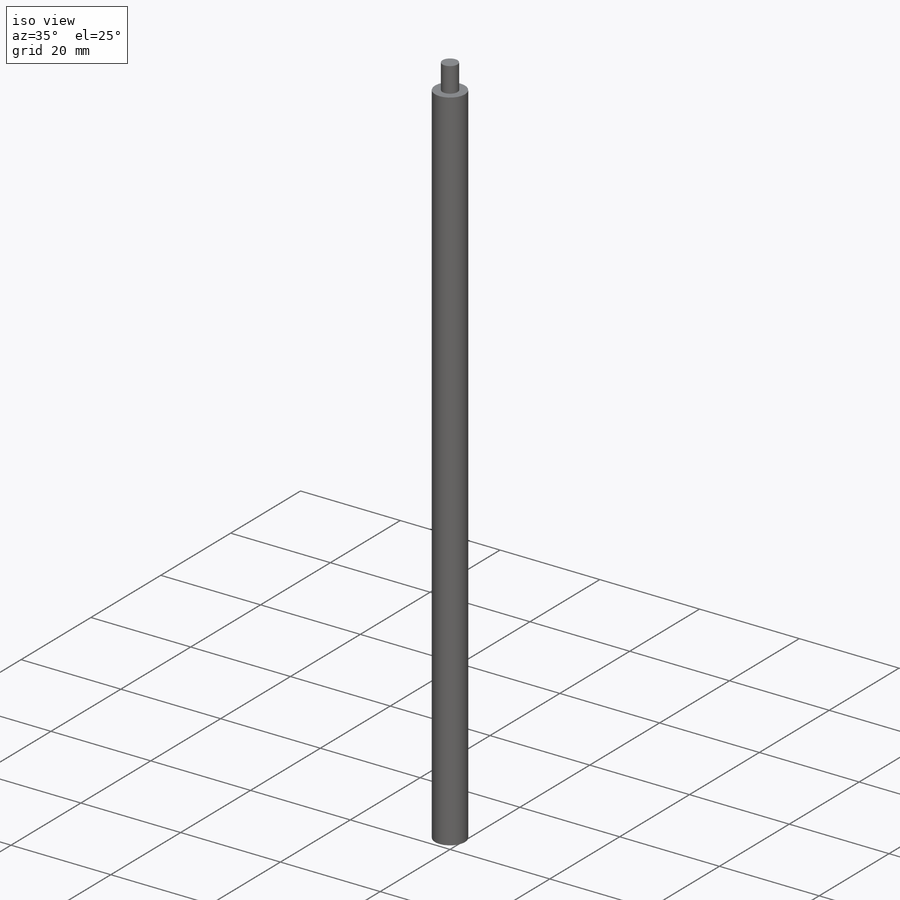
[diagram: iso view]
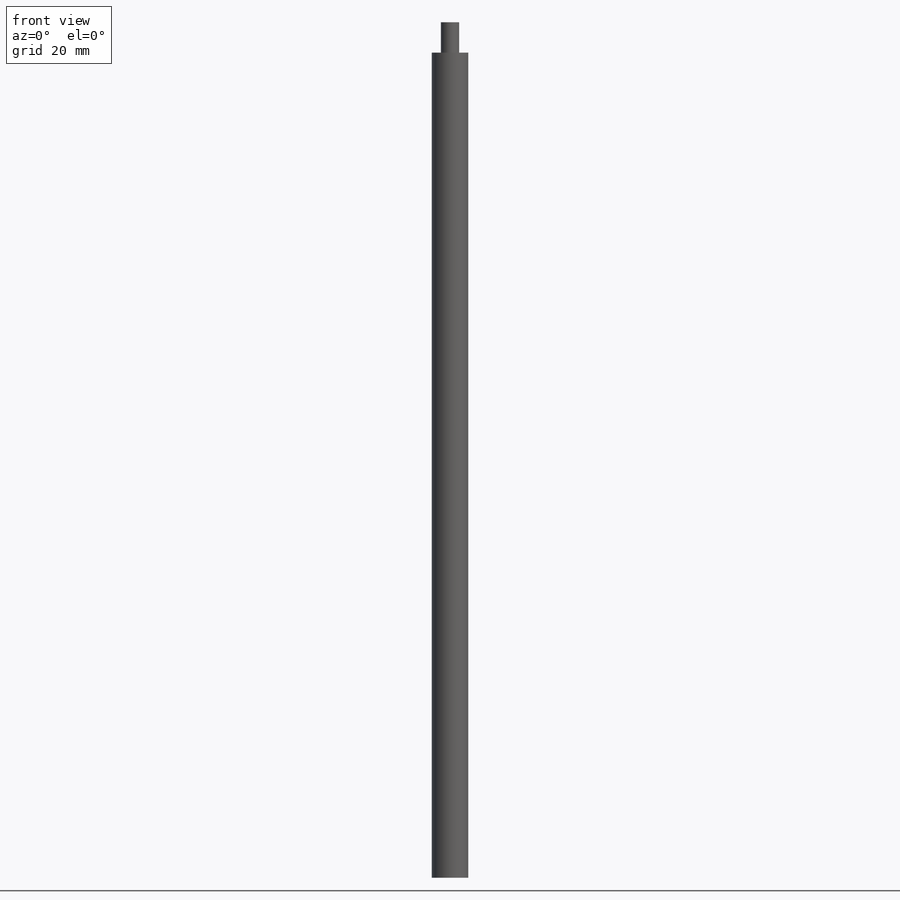
[diagram: front view]
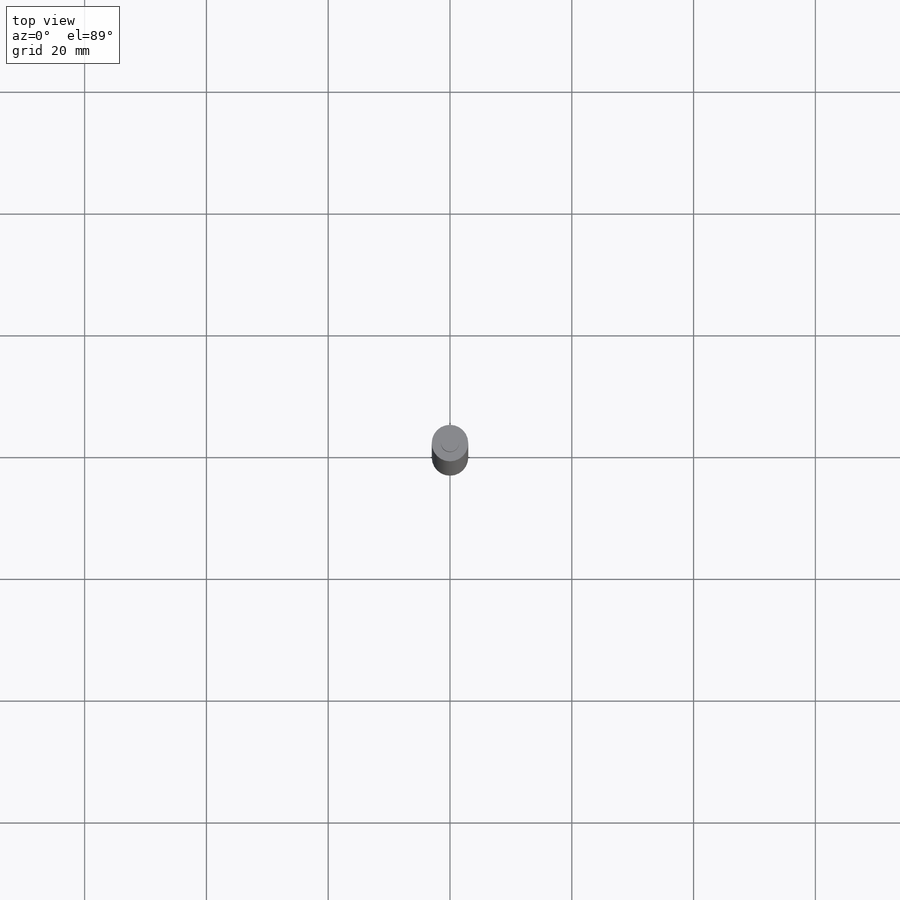
[diagram: top view]
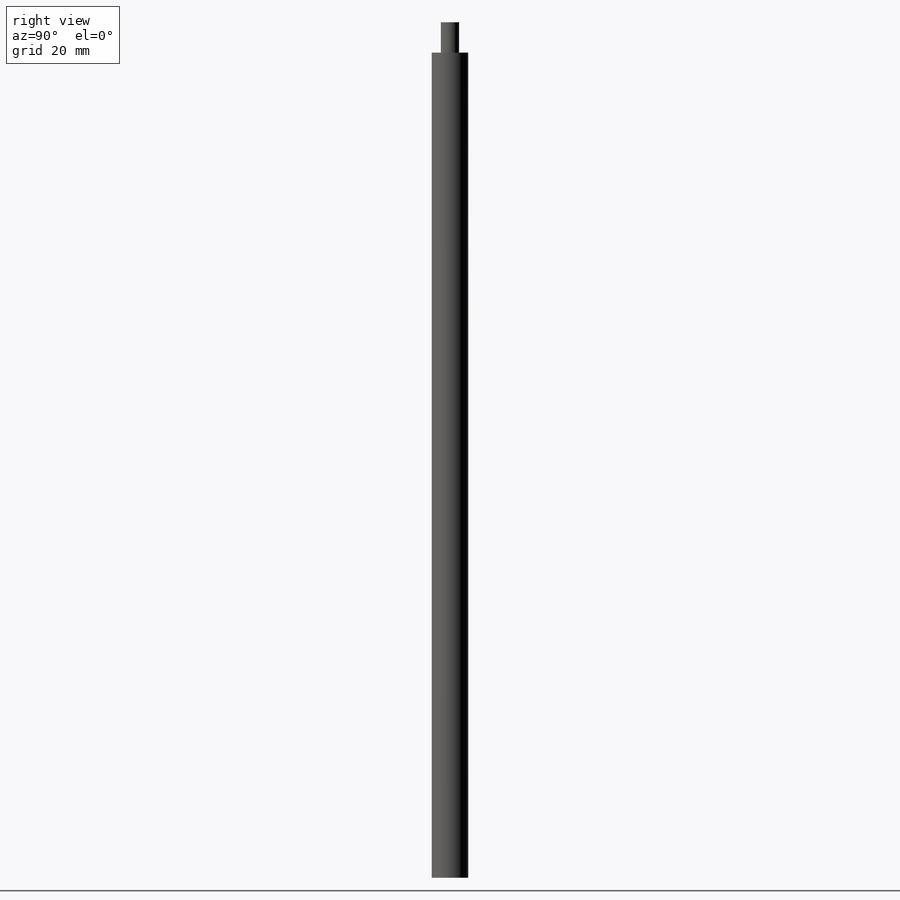
[diagram: right view]
SOLIDWORKS PART (.sldprt)
format: sldprt  version: not decoded by parser v0  size: 146,944 bytes
history: native  units: mm
features: sketch x5, plane x3, extrude x2, material x1, hole x1, thread x1 (+9 scaffold rows collapsed)
feature tree (22):
  scaffold x9  (default folders/planes/origin — collapsed)
  material  "Material <não especificado>"
  plane  "Plano frontal"
  plane  "Plano superior"
  plane  "Plano direito"
  sketch  "Esboço1"  dims[D1=6.0mm]
  extrude  "Ressalto-extrusão1"  Depth=135.5mm
  sketch  "Esboço2"
  hole  "Furo roscado de M3x0.51"  Diameter=2.5mm Depth=18.5mm
  sketch  "Esboço4"
  sketch  "Esboço3"  dims[hole-wizard template sketch: 47 standard entries collapsed; hole parameters kept: c15.Tap Drill Depth=18.5mm c15.D3=~14.816244mm c15.Drill Angle=118.0deg]
  thread  "Rosca de furo1"  Diameter=6mm  [1 undecoded]
  sketch  "Esboço10"  dims[D1=3.0mm]
  extrude  "Ressalto-extrusão2"  Depth=5mm
decode coverage: 7 of 9 modeling features carry decoded parameters
note: ~ marks probable driven/reference dimensions
note: 1 parameter value undecoded
note: suppression state not decoded; provenance and decode notes live in map.json
